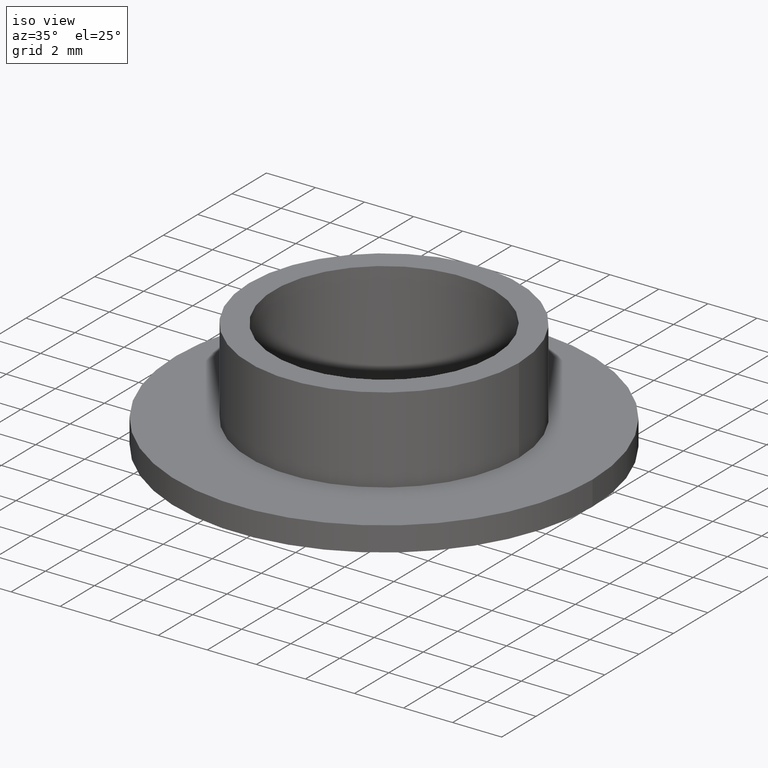
[diagram: clean part render]
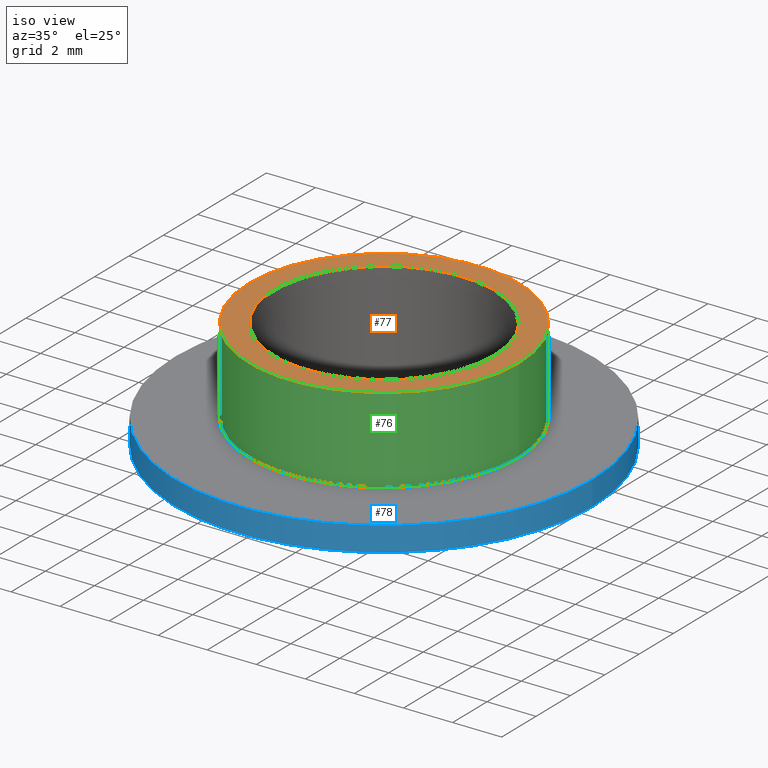
[diagram: same view with three faces highlighted in distinct colors, each labeled with its STEP entity id]
A machine part, iso view with three faces highlighted in distinct colors.
Their STEP definitions:

[orange] entity #77 — the highlighted planar face has unit normal (0, 0, 1).
#15=PLANE('',#89);
#20=FACE_BOUND('',#35,.T.);
#26=FACE_OUTER_BOUND('',#34,.T.);
#34=EDGE_LOOP('',(#64));
#35=EDGE_LOOP('',(#65));
#43=CIRCLE('',#85,4.5);
#44=CIRCLE('',#87,5.5);
#49=VERTEX_POINT('',#125);
#50=VERTEX_POINT('',#128);
#55=EDGE_CURVE('',#49,#49,#43,.T.);
#56=EDGE_CURVE('',#50,#50,#44,.T.);
#64=ORIENTED_EDGE('',*,*,#56,.T.);
#65=ORIENTED_EDGE('',*,*,#55,.T.);
#77=ADVANCED_FACE('',(#26,#20),#15,.T.);
#85=AXIS2_PLACEMENT_3D('',#126,#101,#102);
#87=AXIS2_PLACEMENT_3D('',#129,#105,#106);
#89=AXIS2_PLACEMENT_3D('',#132,#109,#110);
#101=DIRECTION('center_axis',(0.,0.,-1.));
#102=DIRECTION('ref_axis',(1.,0.,0.));
#105=DIRECTION('center_axis',(0.,0.,1.));
#106=DIRECTION('ref_axis',(-1.,0.,0.));
#109=DIRECTION('center_axis',(0.,0.,1.));
#110=DIRECTION('ref_axis',(1.,0.,0.));
#125=CARTESIAN_POINT('',(4.5,0.,4.5));
#126=CARTESIAN_POINT('Origin',(0.,0.,4.5));
#128=CARTESIAN_POINT('',(5.5,6.73555739531044E-16,4.5));
#129=CARTESIAN_POINT('Origin',(0.,0.,4.5));
#132=CARTESIAN_POINT('Origin',(-2.24345254752611E-16,8.41078048958452E-17,
4.5));

[blue] entity #78 — the highlighted cylindrical surface (bore or boss wall) has radius 8.5 mm, axis along (0, 0, 1).
#21=FACE_BOUND('',#37,.T.);
#27=FACE_OUTER_BOUND('',#36,.T.);
#36=EDGE_LOOP('',(#66));
#37=EDGE_LOOP('',(#67));
#46=CIRCLE('',#91,8.5);
#47=CIRCLE('',#92,8.5);
#52=VERTEX_POINT('',#134);
#53=VERTEX_POINT('',#136);
#58=EDGE_CURVE('',#52,#52,#46,.T.);
#59=EDGE_CURVE('',#53,#53,#47,.T.);
#66=ORIENTED_EDGE('',*,*,#58,.F.);
#67=ORIENTED_EDGE('',*,*,#59,.F.);
#74=CYLINDRICAL_SURFACE('',#90,8.5);
#78=ADVANCED_FACE('',(#27,#21),#74,.T.);
#90=AXIS2_PLACEMENT_3D('',#133,#111,#112);
#91=AXIS2_PLACEMENT_3D('',#135,#113,#114);
#92=AXIS2_PLACEMENT_3D('',#137,#115,#116);
#111=DIRECTION('center_axis',(0.,0.,1.));
#112=DIRECTION('ref_axis',(-1.,0.,0.));
#113=DIRECTION('center_axis',(0.,0.,1.));
#114=DIRECTION('ref_axis',(-1.,0.,0.));
#115=DIRECTION('center_axis',(0.,0.,-1.));
#116=DIRECTION('ref_axis',(-1.,0.,0.));
#133=CARTESIAN_POINT('Origin',(0.,0.,0.));
#134=CARTESIAN_POINT('',(8.5,1.04094977927525E-15,1.));
#135=CARTESIAN_POINT('Origin',(0.,0.,1.));
#136=CARTESIAN_POINT('',(8.5,1.04094977927525E-15,0.));
#137=CARTESIAN_POINT('Origin',(0.,0.,0.));

[green] entity #76 — the highlighted cylindrical surface (bore or boss wall) has radius 5.5 mm, axis along (0, 0, 1).
#19=FACE_BOUND('',#33,.T.);
#25=FACE_OUTER_BOUND('',#32,.T.);
#32=EDGE_LOOP('',(#62));
#33=EDGE_LOOP('',(#63));
#44=CIRCLE('',#87,5.5);
#45=CIRCLE('',#88,5.5);
#50=VERTEX_POINT('',#128);
#51=VERTEX_POINT('',#130);
#56=EDGE_CURVE('',#50,#50,#44,.T.);
#57=EDGE_CURVE('',#51,#51,#45,.T.);
#62=ORIENTED_EDGE('',*,*,#56,.F.);
#63=ORIENTED_EDGE('',*,*,#57,.F.);
#73=CYLINDRICAL_SURFACE('',#86,5.5);
#76=ADVANCED_FACE('',(#25,#19),#73,.T.);
#86=AXIS2_PLACEMENT_3D('',#127,#103,#104);
#87=AXIS2_PLACEMENT_3D('',#129,#105,#106);
#88=AXIS2_PLACEMENT_3D('',#131,#107,#108);
#103=DIRECTION('center_axis',(0.,0.,1.));
#104=DIRECTION('ref_axis',(-1.,0.,0.));
#105=DIRECTION('center_axis',(0.,0.,1.));
#106=DIRECTION('ref_axis',(-1.,0.,0.));
#107=DIRECTION('center_axis',(0.,0.,-1.));
#108=DIRECTION('ref_axis',(-1.,0.,0.));
#127=CARTESIAN_POINT('Origin',(0.,0.,1.));
#128=CARTESIAN_POINT('',(5.5,6.73555739531044E-16,4.5));
#129=CARTESIAN_POINT('Origin',(0.,0.,4.5));
#130=CARTESIAN_POINT('',(5.5,6.73555739531044E-16,1.));
#131=CARTESIAN_POINT('Origin',(0.,0.,1.));